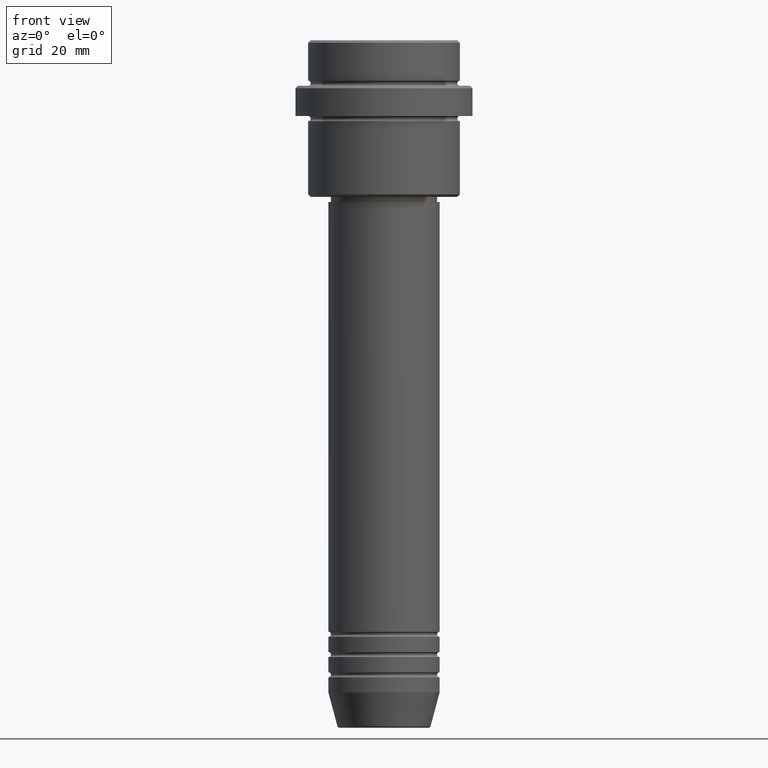
[diagram: clean part render]
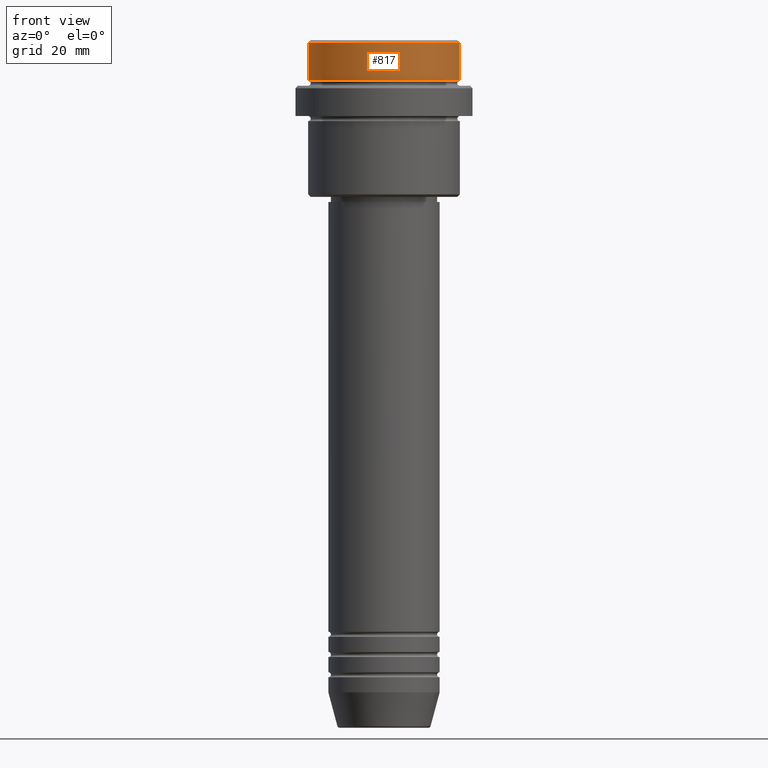
[diagram: same view with one face highlighted and labeled with its STEP entity id]
A machine part, front view. The second image highlights one B-rep face of the part: STEP entity #817.
In plain terms, the highlighted cylindrical surface (partial cylindrical patch) has radius 15 mm, axis along (-0, -0, 1).
Its self-contained STEP definition (entity closure, byte-faithful):
#68 = DIRECTION ( 'NONE',  ( 1.000000000000000000, 0.000000000000000000, 0.000000000000000000 ) ) ;
#169 = AXIS2_PLACEMENT_3D ( 'NONE', #1410, #751, #1185 ) ;
#171 = CARTESIAN_POINT ( 'NONE',  ( 15.00000000000000000, 0.000000000000000000, 0.000000000000000000 ) ) ;
#185 = CYLINDRICAL_SURFACE ( 'NONE', #965, 15.00000000000000000 ) ;
#212 = VECTOR ( 'NONE', #720, 1000.000000000000000 ) ;
#220 = CARTESIAN_POINT ( 'NONE',  ( -15.00000000000000000, 1.836970198721029589E-15, -7.999999999999998224 ) ) ;
#285 = CARTESIAN_POINT ( 'NONE',  ( -15.00000000000000000, 1.836970198721029589E-15, 0.000000000000000000 ) ) ;
#405 = LINE ( 'NONE', #171, #1188 ) ;
#426 = VERTEX_POINT ( 'NONE', #1249 ) ;
#605 = ORIENTED_EDGE ( 'NONE', *, *, #993, .T. ) ;
#627 = VERTEX_POINT ( 'NONE', #220 ) ;
#632 = CARTESIAN_POINT ( 'NONE',  ( -15.00000000000000000, 1.836970198721029589E-15, -0.4999999999999970024 ) ) ;
#685 = ORIENTED_EDGE ( 'NONE', *, *, #1050, .F. ) ;
#720 = DIRECTION ( 'NONE',  ( -0.000000000000000000, -0.000000000000000000, 1.000000000000000000 ) ) ;
#725 = EDGE_LOOP ( 'NONE', ( #685, #605, #1224, #1159 ) ) ;
#751 = DIRECTION ( 'NONE',  ( 0.000000000000000000, 0.000000000000000000, -1.000000000000000000 ) ) ;
#817 = ADVANCED_FACE ( 'NONE', ( #1201 ), #185, .T. ) ;
#833 = DIRECTION ( 'NONE',  ( -0.000000000000000000, -0.000000000000000000, 1.000000000000000000 ) ) ;
#965 = AXIS2_PLACEMENT_3D ( 'NONE', #1205, #971, #1075 ) ;
#971 = DIRECTION ( 'NONE',  ( -0.000000000000000000, -0.000000000000000000, 1.000000000000000000 ) ) ;
#993 = EDGE_CURVE ( 'NONE', #627, #426, #1101, .T. ) ;
#1012 = EDGE_CURVE ( 'NONE', #426, #1194, #405, .T. ) ;
#1034 = CARTESIAN_POINT ( 'NONE',  ( 0.000000000000000000, 0.000000000000000000, -7.999999999999998224 ) ) ;
#1050 = EDGE_CURVE ( 'NONE', #627, #1414, #1395, .T. ) ;
#1075 = DIRECTION ( 'NONE',  ( 1.000000000000000000, 0.000000000000000000, 0.000000000000000000 ) ) ;
#1101 = CIRCLE ( 'NONE', #1258, 15.00000000000000000 ) ;
#1159 = ORIENTED_EDGE ( 'NONE', *, *, #1321, .T. ) ;
#1185 = DIRECTION ( 'NONE',  ( 1.000000000000000000, 0.000000000000000000, 0.000000000000000000 ) ) ;
#1188 = VECTOR ( 'NONE', #833, 1000.000000000000000 ) ;
#1194 = VERTEX_POINT ( 'NONE', #1228 ) ;
#1201 = FACE_OUTER_BOUND ( 'NONE', #725, .T. ) ;
#1205 = CARTESIAN_POINT ( 'NONE',  ( 0.000000000000000000, 0.000000000000000000, 0.000000000000000000 ) ) ;
#1224 = ORIENTED_EDGE ( 'NONE', *, *, #1012, .T. ) ;
#1228 = CARTESIAN_POINT ( 'NONE',  ( 15.00000000000000000, 0.000000000000000000, -0.4999999999999970024 ) ) ;
#1249 = CARTESIAN_POINT ( 'NONE',  ( 15.00000000000000000, 0.000000000000000000, -7.999999999999998224 ) ) ;
#1258 = AXIS2_PLACEMENT_3D ( 'NONE', #1034, #1366, #68 ) ;
#1321 = EDGE_CURVE ( 'NONE', #1194, #1414, #1407, .T. ) ;
#1366 = DIRECTION ( 'NONE',  ( -0.000000000000000000, -0.000000000000000000, 1.000000000000000000 ) ) ;
#1395 = LINE ( 'NONE', #285, #212 ) ;
#1407 = CIRCLE ( 'NONE', #169, 15.00000000000000000 ) ;
#1410 = CARTESIAN_POINT ( 'NONE',  ( 0.000000000000000000, 0.000000000000000000, -0.4999999999999970024 ) ) ;
#1414 = VERTEX_POINT ( 'NONE', #632 ) ;